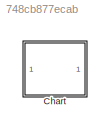
MODEL slx_748cb877ecab
KIND model
CONFIG AbsTol = auto
CONFIG EnableMultiTasking = off
CONFIG FixedStep = auto
CONFIG MaxStep = auto
CONFIG MinStep = auto
CONFIG RelTol = 1e-3
CONFIG SampleTimeConstraint = Unconstrained
CONFIG SolverName = VariableStepAuto
CONFIG StartTime = 0.0
CONFIG StopTime = 10.0
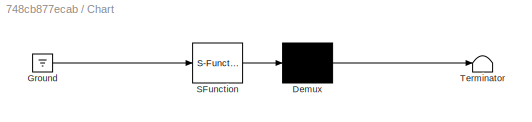
BLOCK [SubSystem] Chart
  ErrorFcn = Stateflow.Translate.translate
  PermitHierarchicalResolution = ExplicitOnly
  Ports = []
  RequestExecContextInheritance = off
  SFBlockType = Chart
  TreatAsAtomicUnit = on
BLOCK [Demux] Chart/ Demux 
  Outputs = 1
  Ports = [1, 1]
BLOCK [Ground] Chart/ Ground 
BLOCK [S-Function] Chart/ SFunction 
  EnableBusSupport = on
  FunctionName = sf_sfun
  PortCounts = [1 1]
  Ports = [1, 1]
  SFcnIsStateOwnerBlock = off
  SFunctionDeploymentMode = off
  Tag = Stateflow S-Function 3
BLOCK [Terminator] Chart/ Terminator 
CHART Chart states=6 transitions=16
  STATE_LABEL 'RunW\nen:fprintf("en_RunW");'
  STATE_LABEL 'Running\ndu:fprintf("edu_Running");\ndisp_cent = cent;\ndisp_sec = sec;\ndisp_min = mins;\n'
  STATE_LABEL 'Lap\nen:fprintf("en_Lap");'
  STATE_LABEL 'TIC{fprintf("cond_TIC");\ncent = cent + 1;}'
  STATE_LABEL '[cent == 100]{cent = 0;\nsec = sec + 1;}'
  STATE_LABEL '[sec == 60]{sec = 0;\nmins = mins + 1;}'
  STATE_LABEL 'LAP'
  STATE_LABEL 'LAP'
  STATE_LABEL 'Running\ndu:fprintf("edu_Running");\ndisp_cent = cent;\ndisp_sec = sec;\ndisp_min = mins;\n'
  STATE_LABEL 'Lap\nen:fprintf("en_Lap");'
  STATE_LABEL 'StopW\nen:fprintf("en_StopW");'
  STATE_LABEL 'Reset\nen:fprintf("en_Reset");send(LAP);send(START);'
  STATE_LABEL 'LAP{cent = 0;sec=0;mins=0;\ndisp_cent=0;disp_sec=0;\ndisp_min=0;}'
  STATE_LABEL 'LapStop\nen:fprintf("en_LapStop");'
  STATE_LABEL 'LAP'
  STATE_LABEL 'Reset\nen:fprintf("en_Reset");send(LAP);send(START);'
  STATE_LABEL 'LAP{cent = 0;sec=0;mins=0;\ndisp_cent=0;disp_sec=0;\ndisp_min=0;}'
  STATE_LABEL 'LapStop\nen:fprintf("en_LapStop");'
CHART  states=0 transitions=0
